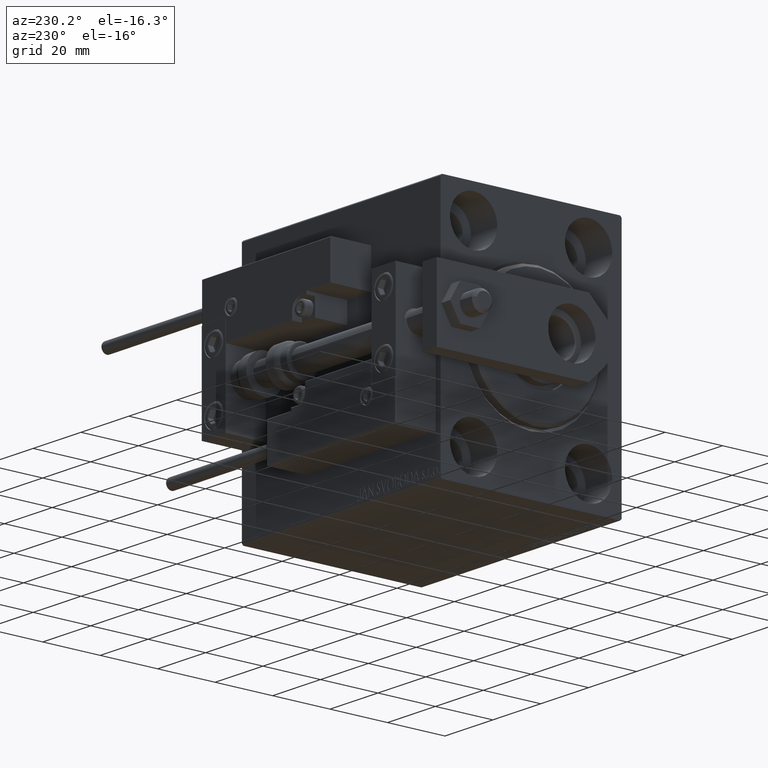
[diagram: clean part render]
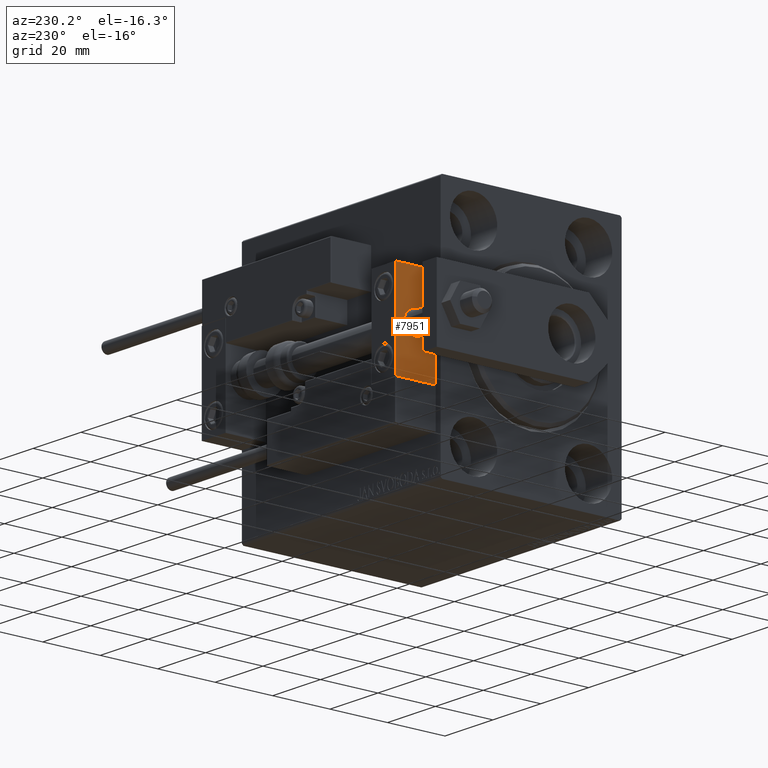
[diagram: same view with one face highlighted and labeled with its STEP entity id]
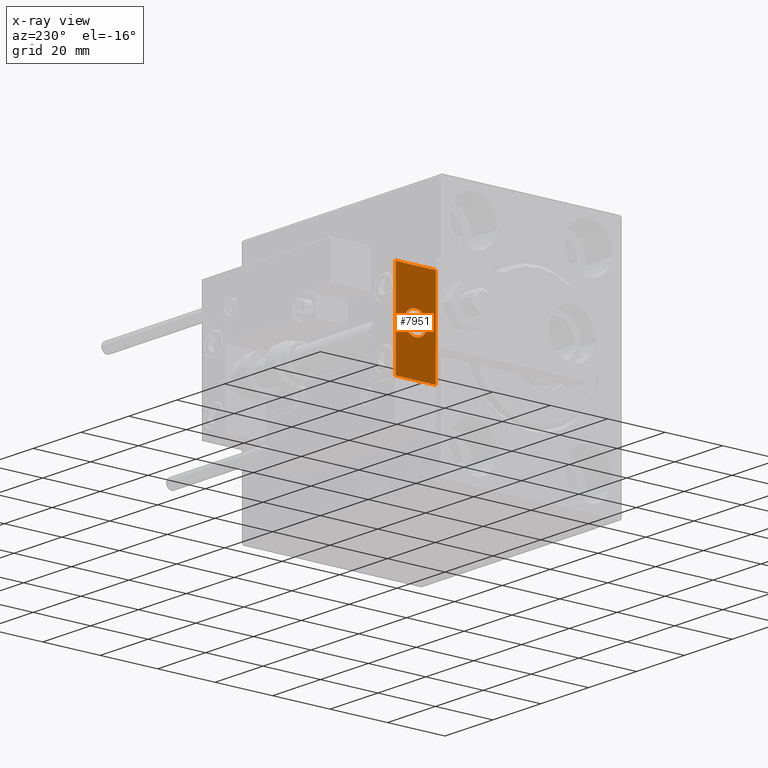
[diagram: x-ray of the same camera — body ghosted, the highlighted face saturated]
A machine part, auxiliary view. The second image highlights one B-rep face of the part: STEP entity #7951.
The next image is the same camera in x-ray: the body ghosted, the highlighted face saturated — about 7% of this face is hidden behind the body in this view.
In plain terms, the highlighted planar face has unit normal (1, 0, -0).
Its self-contained STEP definition (entity closure, byte-faithful):
#402 = LINE ( 'NONE', #19176, #10239 ) ;
#1556 = DIRECTION ( 'NONE',  ( -1.000000000000000000, 0.000000000000000000, -0.000000000000000000 ) ) ;
#3951 = ORIENTED_EDGE ( 'NONE', *, *, #13224, .F. ) ;
#4327 = ORIENTED_EDGE ( 'NONE', *, *, #24092, .T. ) ;
#5787 = AXIS2_PLACEMENT_3D ( 'NONE', #39557, #1556, #35778 ) ;
#5962 = VERTEX_POINT ( 'NONE', #38008 ) ;
#6366 = AXIS2_PLACEMENT_3D ( 'NONE', #49327, #40717, #18712 ) ;
#7019 = DIRECTION ( 'NONE',  ( 0.000000000000000000, 0.000000000000000000, 1.000000000000000000 ) ) ;
#7273 = CARTESIAN_POINT ( 'NONE',  ( 10.00000000000000000, 0.000000000000000000, 0.000000000000000000 ) ) ;
#7951 = ADVANCED_FACE ( 'NONE', ( #44347, #24138 ), #9685, .F. ) ;
#8078 = CARTESIAN_POINT ( 'NONE',  ( 10.00000000000000000, -7.000000000000000000, -16.00000000000000711 ) ) ;
#9596 = VECTOR ( 'NONE', #32641, 1000.000000000000000 ) ;
#9685 = PLANE ( 'NONE',  #5787 ) ;
#10239 = VECTOR ( 'NONE', #46253, 1000.000000000000000 ) ;
#11448 = VERTEX_POINT ( 'NONE', #39538 ) ;
#12599 = EDGE_LOOP ( 'NONE', ( #33045, #27867 ) ) ;
#12689 = LINE ( 'NONE', #28145, #33836 ) ;
#13224 = EDGE_CURVE ( 'NONE', #5962, #43249, #47443, .T. ) ;
#13392 = CARTESIAN_POINT ( 'NONE',  ( 10.00000000000000000, 0.000000000000000000, 4.000000000000000000 ) ) ;
#14988 = ORIENTED_EDGE ( 'NONE', *, *, #42991, .F. ) ;
#15840 = DIRECTION ( 'NONE',  ( 0.000000000000000000, 0.000000000000000000, -1.000000000000000000 ) ) ;
#16292 = AXIS2_PLACEMENT_3D ( 'NONE', #7273, #45495, #7019 ) ;
#17196 = CARTESIAN_POINT ( 'NONE',  ( 10.00000000000000000, 7.000000000000000000, -16.00000000000000711 ) ) ;
#18712 = DIRECTION ( 'NONE',  ( 0.000000000000000000, 0.000000000000000000, 1.000000000000000000 ) ) ;
#19176 = CARTESIAN_POINT ( 'NONE',  ( 10.00000000000000000, 7.000000000000000000, 15.99999999999999289 ) ) ;
#20319 = DIRECTION ( 'NONE',  ( 0.000000000000000000, 0.000000000000000000, -1.000000000000000000 ) ) ;
#23948 = CARTESIAN_POINT ( 'NONE',  ( 10.00000000000000000, 7.000000000000000000, 15.99999999999999289 ) ) ;
#24092 = EDGE_CURVE ( 'NONE', #5962, #29906, #402, .T. ) ;
#24138 = FACE_OUTER_BOUND ( 'NONE', #37436, .T. ) ;
#26029 = CIRCLE ( 'NONE', #16292, 4.000000000000000000 ) ;
#27052 = ORIENTED_EDGE ( 'NONE', *, *, #32844, .T. ) ;
#27867 = ORIENTED_EDGE ( 'NONE', *, *, #34211, .T. ) ;
#28145 = CARTESIAN_POINT ( 'NONE',  ( 10.00000000000000000, -7.000000000000000000, 15.99999999999999289 ) ) ;
#29906 = VERTEX_POINT ( 'NONE', #36804 ) ;
#30135 = VERTEX_POINT ( 'NONE', #13392 ) ;
#32641 = DIRECTION ( 'NONE',  ( 0.000000000000000000, -1.000000000000000000, 0.000000000000000000 ) ) ;
#32654 = VECTOR ( 'NONE', #15840, 1000.000000000000000 ) ;
#32844 = EDGE_CURVE ( 'NONE', #29906, #35667, #12689, .T. ) ;
#33045 = ORIENTED_EDGE ( 'NONE', *, *, #41071, .T. ) ;
#33836 = VECTOR ( 'NONE', #20319, 1000.000000000000000 ) ;
#34211 = EDGE_CURVE ( 'NONE', #11448, #30135, #34696, .T. ) ;
#34696 = CIRCLE ( 'NONE', #6366, 4.000000000000000000 ) ;
#35667 = VERTEX_POINT ( 'NONE', #8078 ) ;
#35778 = DIRECTION ( 'NONE',  ( -0.000000000000000000, 0.000000000000000000, 1.000000000000000000 ) ) ;
#36677 = LINE ( 'NONE', #17196, #9596 ) ;
#36804 = CARTESIAN_POINT ( 'NONE',  ( 10.00000000000000000, -7.000000000000000000, 15.99999999999999289 ) ) ;
#37436 = EDGE_LOOP ( 'NONE', ( #27052, #14988, #3951, #4327 ) ) ;
#38008 = CARTESIAN_POINT ( 'NONE',  ( 10.00000000000000000, 7.000000000000000000, 15.99999999999999289 ) ) ;
#39538 = CARTESIAN_POINT ( 'NONE',  ( 10.00000000000000000, 4.898587196589412829E-16, -4.000000000000000000 ) ) ;
#39557 = CARTESIAN_POINT ( 'NONE',  ( 10.00000000000000000, 0.000000000000000000, 0.000000000000000000 ) ) ;
#40717 = DIRECTION ( 'NONE',  ( -1.000000000000000000, 0.000000000000000000, 0.000000000000000000 ) ) ;
#41071 = EDGE_CURVE ( 'NONE', #30135, #11448, #26029, .T. ) ;
#42991 = EDGE_CURVE ( 'NONE', #43249, #35667, #36677, .T. ) ;
#43249 = VERTEX_POINT ( 'NONE', #48026 ) ;
#44347 = FACE_BOUND ( 'NONE', #12599, .T. ) ;
#45495 = DIRECTION ( 'NONE',  ( -1.000000000000000000, 0.000000000000000000, 0.000000000000000000 ) ) ;
#46253 = DIRECTION ( 'NONE',  ( 0.000000000000000000, -1.000000000000000000, 0.000000000000000000 ) ) ;
#47443 = LINE ( 'NONE', #23948, #32654 ) ;
#48026 = CARTESIAN_POINT ( 'NONE',  ( 10.00000000000000000, 7.000000000000000000, -16.00000000000000711 ) ) ;
#49327 = CARTESIAN_POINT ( 'NONE',  ( 10.00000000000000000, 0.000000000000000000, 0.000000000000000000 ) ) ;